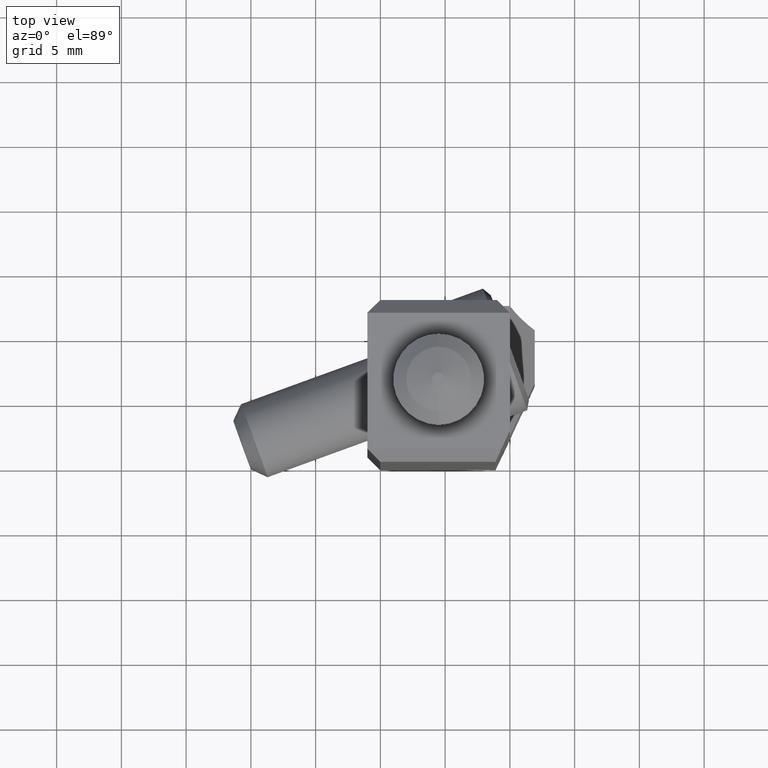
[diagram: clean part render]
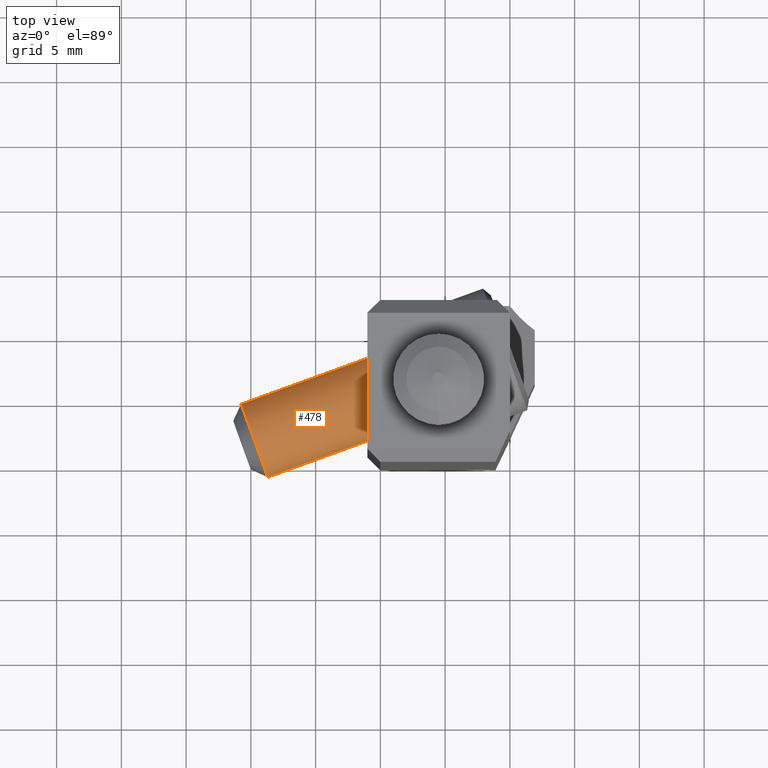
[diagram: same view with one face highlighted and labeled with its STEP entity id]
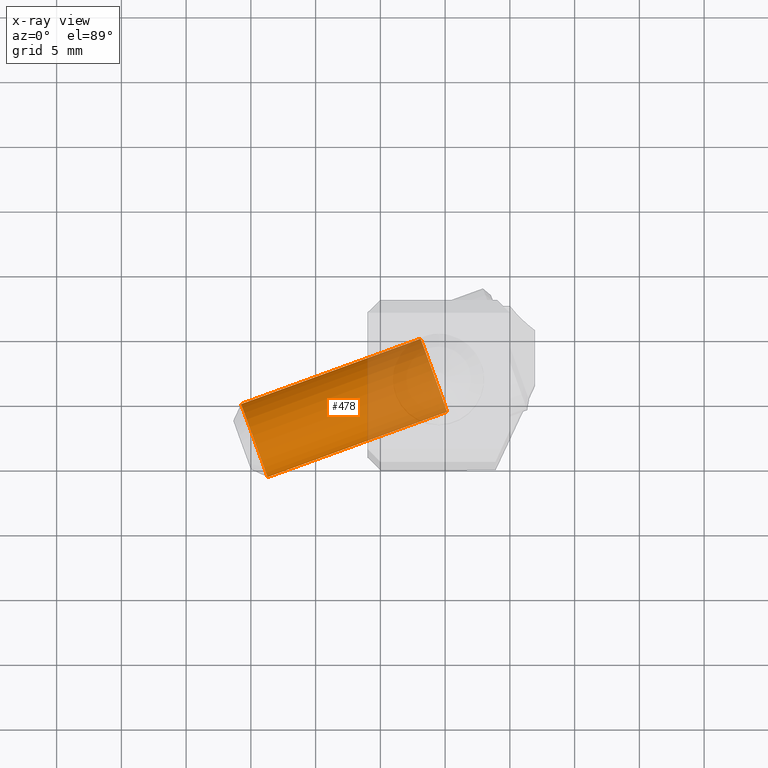
[diagram: x-ray of the same camera — body ghosted, the highlighted face saturated]
A machine part, top view. The second image highlights one B-rep face of the part: STEP entity #478.
The next image is the same camera in x-ray: the body ghosted, the highlighted face saturated — about 37% of this face is hidden behind the body in this view.
In plain terms, the highlighted cylindrical surface (partial cylindrical patch) has radius 3 mm, axis along (0.9397, 0.342, 0).
Its self-contained STEP definition (entity closure, byte-faithful):
#214=CYLINDRICAL_SURFACE('',#2971,2.99999999999);
#340=CIRCLE('',#2968,2.99999999999);
#341=CIRCLE('',#2970,3.000000000001);
#478=ADVANCED_FACE('',(#661),#214,.T.);
#661=FACE_OUTER_BOUND('',#810,.T.);
#810=EDGE_LOOP('',(#1871,#1872,#1873,#1874));
#984=LINE('',#5333,#1163);
#985=LINE('',#5337,#1164);
#1163=VECTOR('',#3732,1.);
#1164=VECTOR('',#3735,1.);
#1871=ORIENTED_EDGE('',*,*,#2531,.F.);
#1872=ORIENTED_EDGE('',*,*,#2532,.T.);
#1873=ORIENTED_EDGE('',*,*,#2533,.T.);
#1874=ORIENTED_EDGE('',*,*,#2534,.T.);
#2165=VERTEX_POINT('',#5326);
#2166=VERTEX_POINT('',#5327);
#2167=VERTEX_POINT('',#5334);
#2168=VERTEX_POINT('',#5336);
#2531=EDGE_CURVE('',#2166,#2165,#340,.T.);
#2532=EDGE_CURVE('',#2166,#2167,#984,.T.);
#2533=EDGE_CURVE('',#2167,#2168,#341,.T.);
#2534=EDGE_CURVE('',#2168,#2165,#985,.T.);
#2968=AXIS2_PLACEMENT_3D('',#5331,#3728,#3729);
#2970=AXIS2_PLACEMENT_3D('',#5335,#3733,#3734);
#2971=AXIS2_PLACEMENT_3D('',#5338,#3736,#3737);
#3728=DIRECTION('',(-0.939692620785681,-0.342020143326293,0.));
#3729=DIRECTION('',(0.342020143326293,-0.939692620785681,0.));
#3732=DIRECTION('',(0.939692620785821,0.342020143325908,0.));
#3733=DIRECTION('',(-0.939692620786146,-0.342020143325017,0.));
#3734=DIRECTION('',(0.342020143325017,-0.939692620786146,0.));
#3735=DIRECTION('',(-0.939692620785865,-0.342020143325787,0.));
#3736=DIRECTION('',(0.939692620785681,0.342020143326293,0.));
#3737=DIRECTION('',(-0.342020143326293,0.939692620785681,0.));
#5326=CARTESIAN_POINT('',(-20.75960546649,4.640327429436,-12.));
#5327=CARTESIAN_POINT('',(-18.70748460653,-0.9978282952697,-12.));
#5331=CARTESIAN_POINT('',(-19.7335450365,1.821249567077,-12.));
#5333=CARTESIAN_POINT('',(-18.70748460653,-0.9978282952697,-12.));
#5334=CARTESIAN_POINT('',(-4.847018449935,4.046968818787,-12.));
#5335=CARTESIAN_POINT('',(-5.87307887991,6.866046681144,-12.));
#5336=CARTESIAN_POINT('',(-6.899139309885,9.685124543494,-12.));
#5337=CARTESIAN_POINT('',(-6.899139309885,9.685124543494,-12.));
#5338=CARTESIAN_POINT('',(-20.01075435963,1.720353624793,-12.));